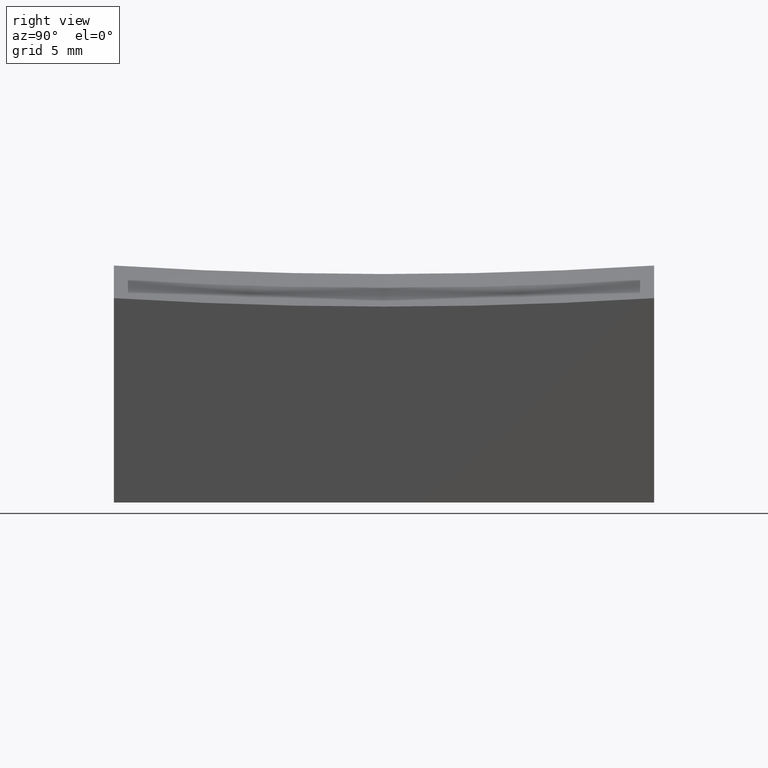
[diagram: clean part render]
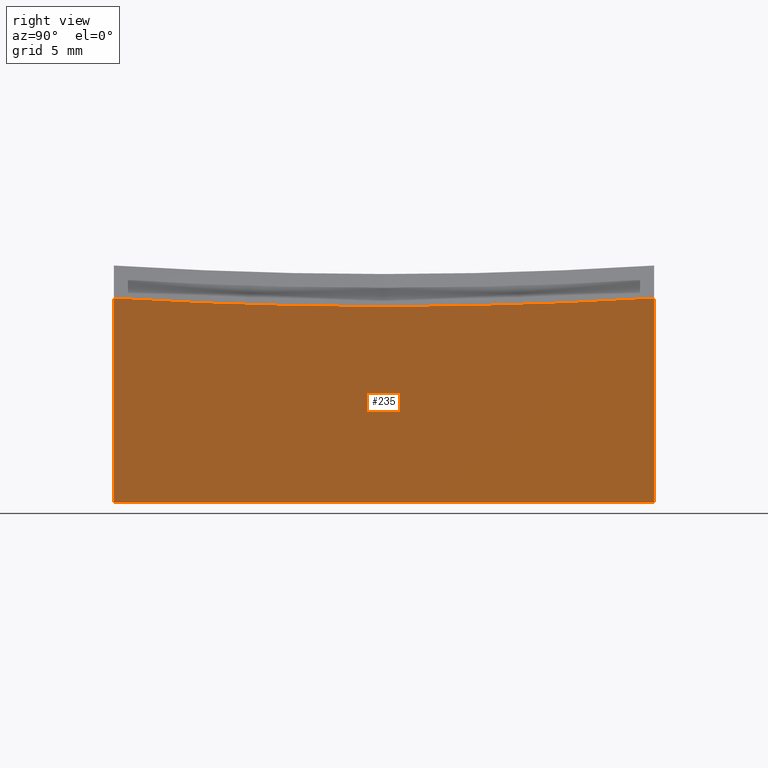
[diagram: same view with one face highlighted and labeled with its STEP entity id]
A machine part, right view. The second image highlights one B-rep face of the part: STEP entity #235.
In plain terms, the highlighted planar face has unit normal (-1, 0, 0).
Its self-contained STEP definition (entity closure, byte-faithful):
#14 = EDGE_CURVE ( 'NONE', #52, #75, #53, .T. ) ;
#18 = CARTESIAN_POINT ( 'NONE',  ( 10.00000000000000178, -12.50000000000000000, 10.00000000000000000 ) ) ;
#19 = LINE ( 'NONE', #275, #250 ) ;
#20 = LINE ( 'NONE', #253, #160 ) ;
#24 = CARTESIAN_POINT ( 'NONE',  ( 10.00000000000000178, 0.000000000000000000, 199.0000000000000000 ) ) ;
#38 = DIRECTION ( 'NONE',  ( -0.000000000000000000, -0.000000000000000000, -1.000000000000000000 ) ) ;
#52 = VERTEX_POINT ( 'NONE', #91 ) ;
#53 = CIRCLE ( 'NONE', #277, 199.9374902313220730 ) ;
#68 = EDGE_CURVE ( 'NONE', #121, #198, #20, .T. ) ;
#75 = VERTEX_POINT ( 'NONE', #123 ) ;
#91 = CARTESIAN_POINT ( 'NONE',  ( 10.00000000000000178, -6.123233995736765296E-16, -0.9374902313220578876 ) ) ;
#98 = ORIENTED_EDGE ( 'NONE', *, *, #206, .F. ) ;
#102 = CARTESIAN_POINT ( 'NONE',  ( 10.00000000000000178, 0.000000000000000000, 199.0000000000000000 ) ) ;
#105 = DIRECTION ( 'NONE',  ( 0.000000000000000000, 1.000000000000000000, 0.000000000000000000 ) ) ;
#111 = DIRECTION ( 'NONE',  ( -1.000000000000000000, 0.000000000000000000, 0.000000000000000000 ) ) ;
#121 = VERTEX_POINT ( 'NONE', #149 ) ;
#122 = CARTESIAN_POINT ( 'NONE',  ( 10.00000000000000178, 12.50000000000000000, -10.00000000000000000 ) ) ;
#123 = CARTESIAN_POINT ( 'NONE',  ( 10.00000000000000178, -12.50000000000000000, -0.5463605280738026426 ) ) ;
#129 = ORIENTED_EDGE ( 'NONE', *, *, #141, .T. ) ;
#132 = VECTOR ( 'NONE', #144, 1000.000000000000000 ) ;
#137 = EDGE_CURVE ( 'NONE', #246, #52, #182, .T. ) ;
#141 = EDGE_CURVE ( 'NONE', #75, #121, #19, .T. ) ;
#142 = EDGE_LOOP ( 'NONE', ( #98, #183, #181, #129, #157 ) ) ;
#144 = DIRECTION ( 'NONE',  ( -0.000000000000000000, -0.000000000000000000, -1.000000000000000000 ) ) ;
#148 = FACE_OUTER_BOUND ( 'NONE', #142, .T. ) ;
#149 = CARTESIAN_POINT ( 'NONE',  ( 10.00000000000000178, -12.50000000000000000, -10.00000000000000000 ) ) ;
#150 = AXIS2_PLACEMENT_3D ( 'NONE', #18, #207, #185 ) ;
#157 = ORIENTED_EDGE ( 'NONE', *, *, #68, .T. ) ;
#160 = VECTOR ( 'NONE', #105, 1000.000000000000000 ) ;
#165 = CARTESIAN_POINT ( 'NONE',  ( 10.00000000000000178, 12.50000000000000000, 10.00000000000000000 ) ) ;
#166 = DIRECTION ( 'NONE',  ( 0.000000000000000000, 0.000000000000000000, 1.000000000000000000 ) ) ;
#176 = CARTESIAN_POINT ( 'NONE',  ( 10.00000000000000178, 12.50000000000000000, -0.5463605280738026426 ) ) ;
#181 = ORIENTED_EDGE ( 'NONE', *, *, #14, .T. ) ;
#182 = CIRCLE ( 'NONE', #187, 199.9374902313220730 ) ;
#183 = ORIENTED_EDGE ( 'NONE', *, *, #137, .T. ) ;
#185 = DIRECTION ( 'NONE',  ( 0.000000000000000000, 0.000000000000000000, 1.000000000000000000 ) ) ;
#187 = AXIS2_PLACEMENT_3D ( 'NONE', #102, #209, #166 ) ;
#192 = DIRECTION ( 'NONE',  ( 0.000000000000000000, 0.000000000000000000, 1.000000000000000000 ) ) ;
#198 = VERTEX_POINT ( 'NONE', #122 ) ;
#203 = PLANE ( 'NONE',  #150 ) ;
#206 = EDGE_CURVE ( 'NONE', #246, #198, #251, .T. ) ;
#207 = DIRECTION ( 'NONE',  ( -1.000000000000000000, 0.000000000000000000, 0.000000000000000000 ) ) ;
#209 = DIRECTION ( 'NONE',  ( -1.000000000000000000, 0.000000000000000000, 0.000000000000000000 ) ) ;
#235 = ADVANCED_FACE ( 'NONE', ( #148 ), #203, .F. ) ;
#246 = VERTEX_POINT ( 'NONE', #176 ) ;
#250 = VECTOR ( 'NONE', #38, 1000.000000000000000 ) ;
#251 = LINE ( 'NONE', #165, #132 ) ;
#253 = CARTESIAN_POINT ( 'NONE',  ( 10.00000000000000178, -12.50000000000000000, -10.00000000000000000 ) ) ;
#275 = CARTESIAN_POINT ( 'NONE',  ( 10.00000000000000178, -12.50000000000000000, 10.00000000000000000 ) ) ;
#277 = AXIS2_PLACEMENT_3D ( 'NONE', #24, #111, #192 ) ;